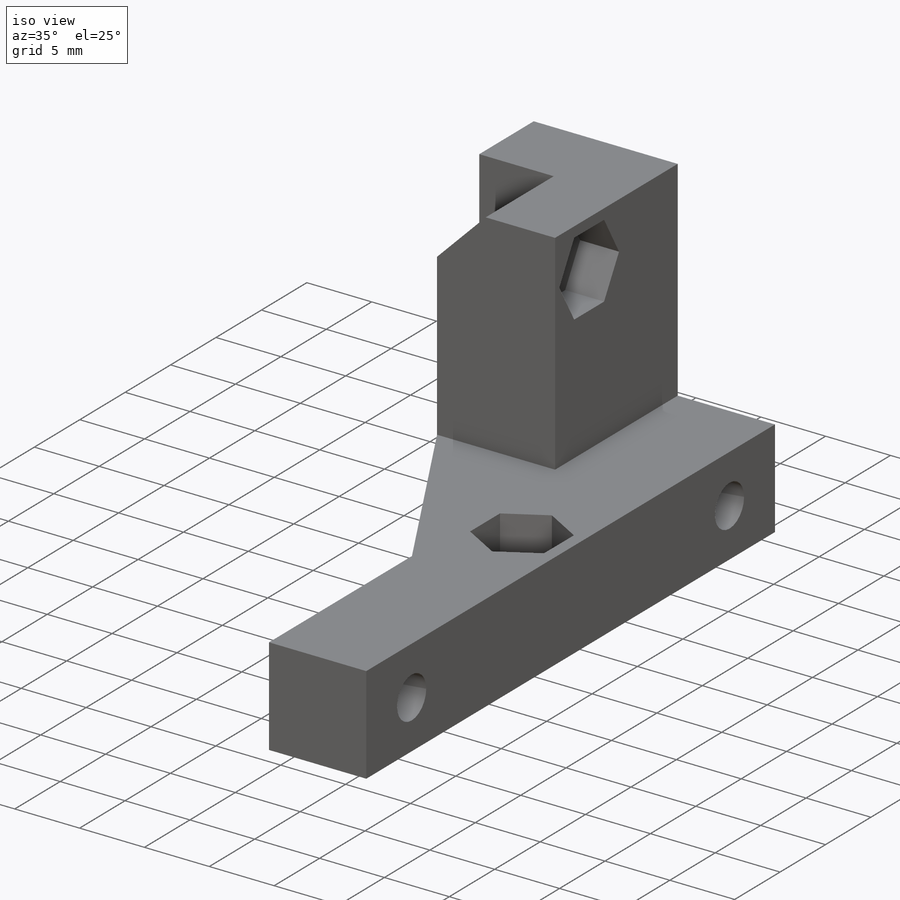
[diagram: iso view]
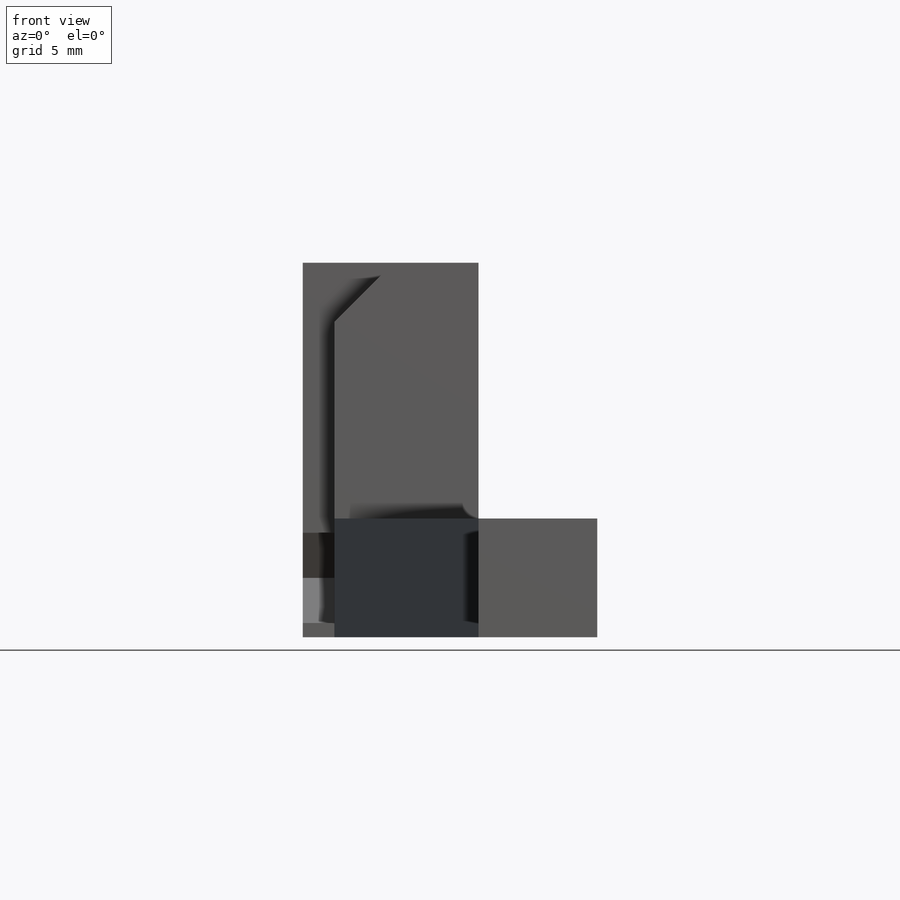
[diagram: front view]
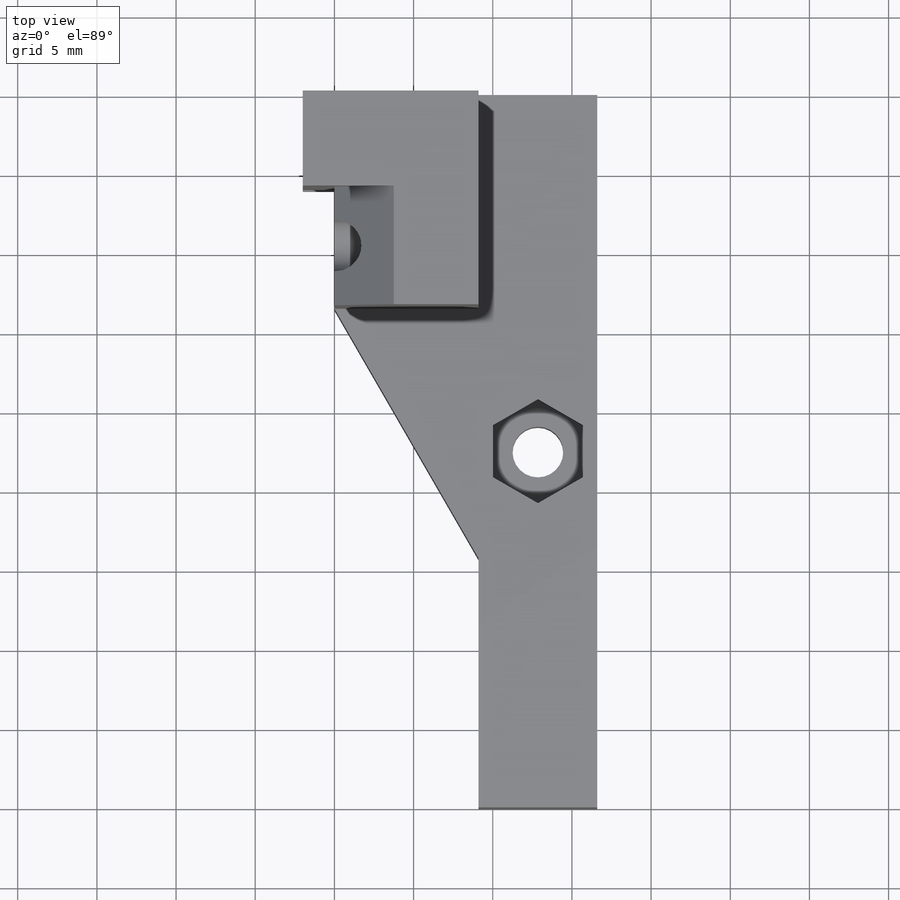
[diagram: top view]
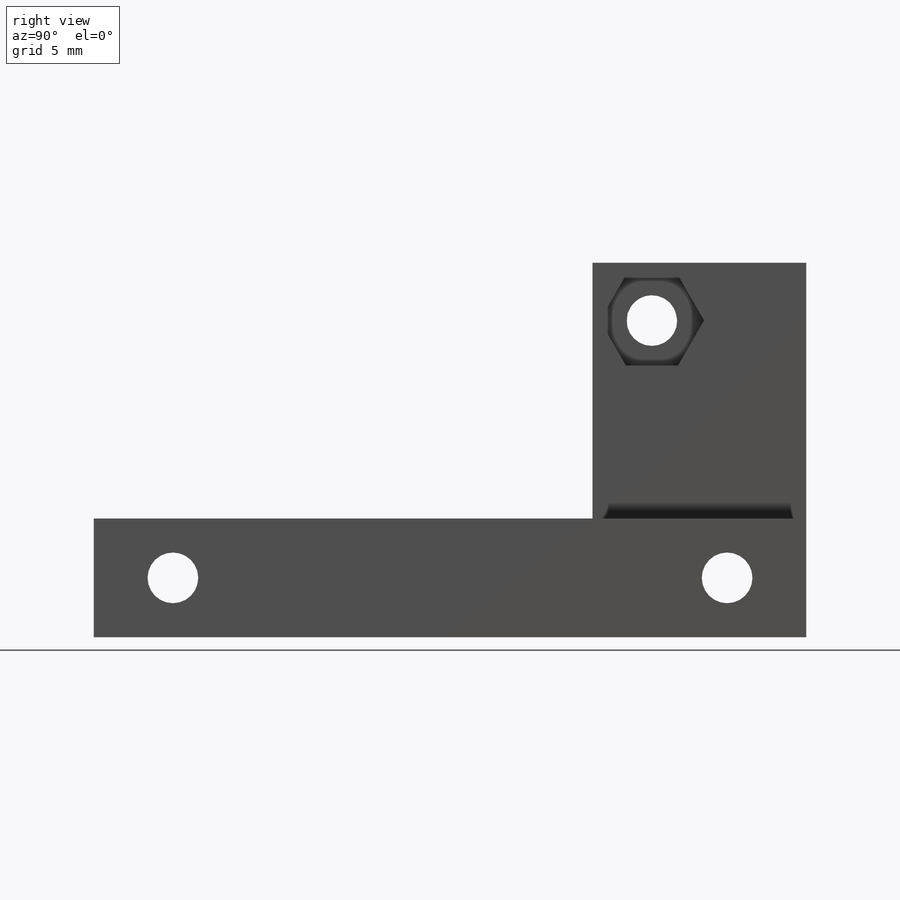
[diagram: right view]
SOLIDWORKS PART (.sldprt)
format: sldprt  version: not decoded by parser v0  size: 292,864 bytes
history: native  units: mm
features: sketch x11, cut_extrude x7, plane x4, extrude x4, material x1 (+13 scaffold rows collapsed)
feature tree (40):
  scaffold x13  (default folders/planes/origin — collapsed)
  material  "Material <sin especificar>"
  plane  "Alzado"
  plane  "Planta"
  plane  "Vista lateral"
  sketch  "Croquis1"  dims[c1.D1=7.5mm c1.D2=~3.741133mm c2.D2=135.0deg c2.D3=3.75mm c2.D4=16.6mm c2.D5=7.5mm c2.D6=23.65mm c2.D7=2.0mm]
  extrude  "Saliente-Extruir1"  Depth=6mm
  sketch  "Croquis2"  dims[D4=3.75mm D1=0.0mm]
  extrude  "Saliente-Extruir2"  Depth=7.5mm
  sketch  "Croquis3"  dims[c1.D1=7.5mm c1.D2=9.1mm c2.D2=60.0deg]
  extrude  "Saliente-Extruir3"  [1 undecoded]
  plane  "Plano1"  Offset=45mm
  sketch  "Croquis4"  dims[D1=0.0mm]
  extrude  "Saliente-Extruir4"  [1 undecoded]
  sketch  "Croquis5"  dims[D2=3.2mm D1=35.0mm]
  cut_extrude  "Cortar-Extruir1"  [1 undecoded]
  sketch  "Croquis6"  dims[D1=5.7mm]
  cut_extrude  "Cortar-Extruir2"  Depth=4.5mm
  sketch  "Croquis7"  dims[D1=5.7mm]
  cut_extrude  "Cortar-Extruir3"  Depth=3mm
  sketch  "Croquis8"  dims[D1=3.2mm]
  cut_extrude  "Cortar-Extruir4"  [1 undecoded]
  sketch  "Croquis9"  dims[D1=5.7mm]
  cut_extrude  "Cortar-Extruir5"  Depth=3mm
  sketch  "Croquis10"  dims[D1=3.2mm D2=3.65mm]
  cut_extrude  "Cortar-Extruir6"  [1 undecoded]
  sketch  "Croquis11"  dims[D1=5.7mm]
  cut_extrude  "Cortar-Extruir7"  Depth=3mm
decode coverage: 17 of 22 modeling features carry decoded parameters
note: ~ marks probable driven/reference dimensions
note: 5 parameter values undecoded
summary: no parameter record found for 5 features
note: suppression state not decoded; provenance and decode notes live in map.json
